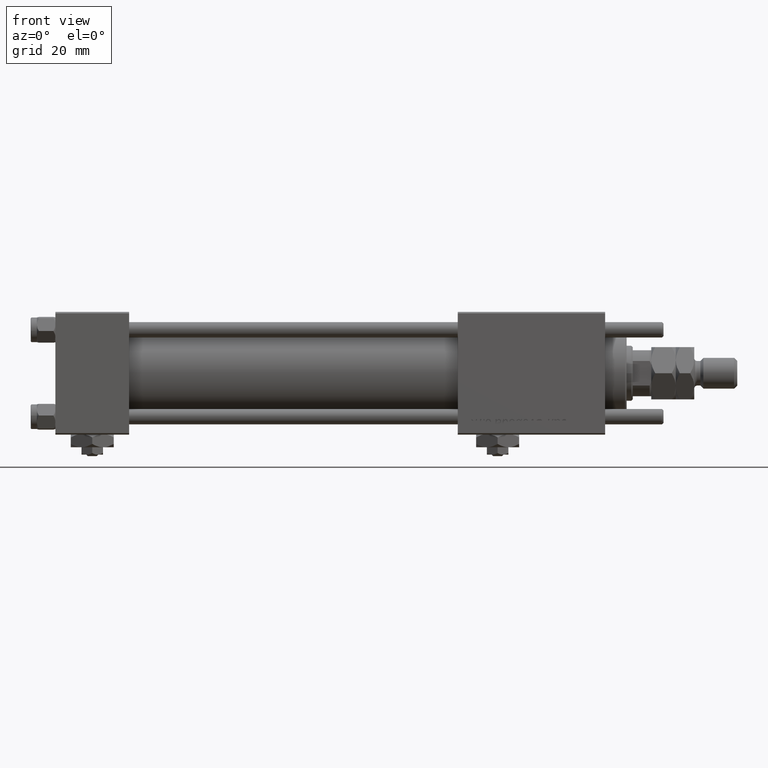
[diagram: clean part render]
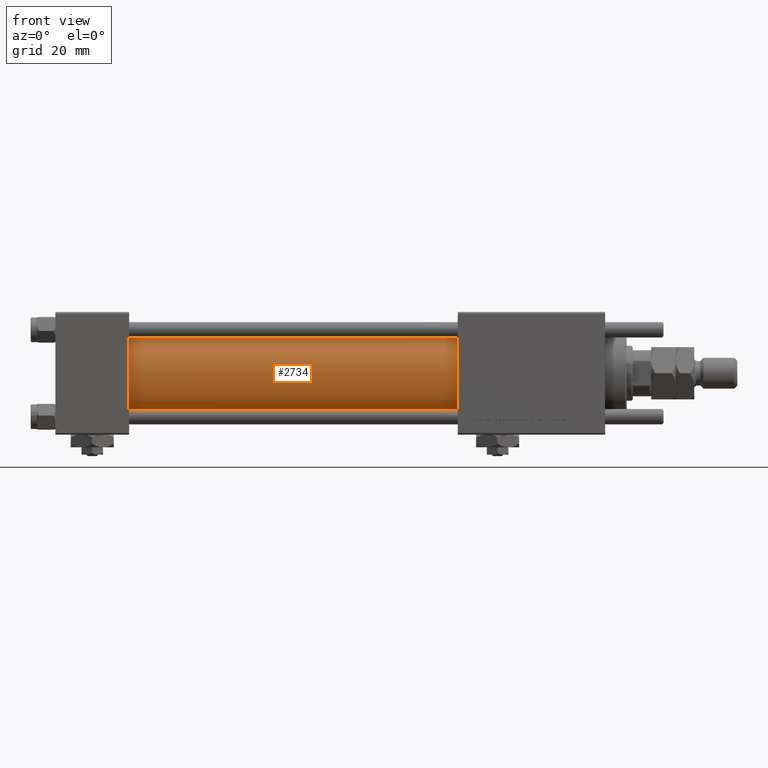
[diagram: same view with one face highlighted and labeled with its STEP entity id]
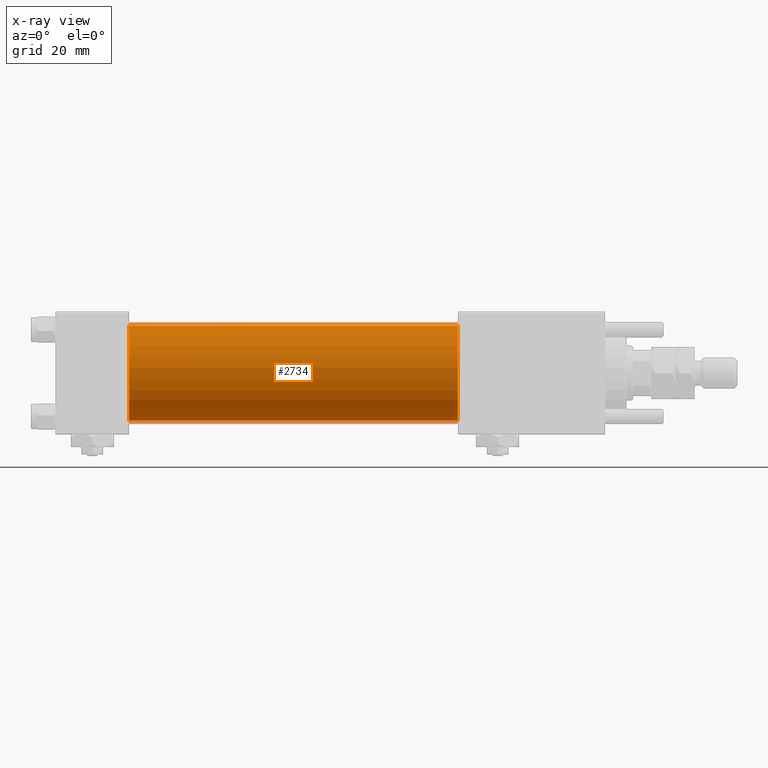
[diagram: x-ray of the same camera — body ghosted, the highlighted face saturated]
A machine part, front view. The second image highlights one B-rep face of the part: STEP entity #2734.
The next image is the same camera in x-ray: the body ghosted, the highlighted face saturated — about 0% of this face is hidden behind the body in this view.
In plain terms, the highlighted cylindrical surface (partial cylindrical patch) has radius 15.5 mm, axis along (-1, -0, -0).
Its self-contained STEP definition (entity closure, byte-faithful):
#463 = DIRECTION ( 'NONE',  ( -1.000000000000000000, -0.000000000000000000, -0.000000000000000000 ) ) ;
#2734 = ADVANCED_FACE ( 'NONE', ( #24729 ), #30221, .T. ) ;
#7496 = ORIENTED_EDGE ( 'NONE', *, *, #36913, .T. ) ;
#8222 = DIRECTION ( 'NONE',  ( 0.000000000000000000, 0.000000000000000000, 1.000000000000000000 ) ) ;
#10136 = CARTESIAN_POINT ( 'NONE',  ( 131.0000000000000000, -2.602085213965210642E-15, 15.50000000000000000 ) ) ;
#13051 = LINE ( 'NONE', #58908, #21835 ) ;
#14577 = DIRECTION ( 'NONE',  ( 1.000000000000000000, 0.000000000000000000, 0.000000000000000000 ) ) ;
#15546 = EDGE_CURVE ( 'NONE', #56882, #48097, #23508, .T. ) ;
#17324 = DIRECTION ( 'NONE',  ( 1.000000000000000000, 0.000000000000000000, 0.000000000000000000 ) ) ;
#18546 = DIRECTION ( 'NONE',  ( 0.000000000000000000, 0.000000000000000000, -1.000000000000000000 ) ) ;
#21835 = VECTOR ( 'NONE', #31075, 1000.000000000000000 ) ;
#22263 = ORIENTED_EDGE ( 'NONE', *, *, #15546, .F. ) ;
#23508 = CIRCLE ( 'NONE', #57714, 15.50000000000000000 ) ;
#23520 = ORIENTED_EDGE ( 'NONE', *, *, #41848, .T. ) ;
#23662 = LINE ( 'NONE', #46919, #36854 ) ;
#24290 = VERTEX_POINT ( 'NONE', #51105 ) ;
#24729 = FACE_OUTER_BOUND ( 'NONE', #47474, .T. ) ;
#25629 = CARTESIAN_POINT ( 'NONE',  ( 131.0000000000000000, -2.602085213965210642E-15, 0.000000000000000000 ) ) ;
#28654 = CARTESIAN_POINT ( 'NONE',  ( 131.0000000000000000, -7.038826752868131828E-16, -15.50000000000000000 ) ) ;
#30221 = CYLINDRICAL_SURFACE ( 'NONE', #39685, 15.50000000000000000 ) ;
#30828 = EDGE_CURVE ( 'NONE', #48097, #24290, #13051, .T. ) ;
#31075 = DIRECTION ( 'NONE',  ( -1.000000000000000000, -0.000000000000000000, -0.000000000000000000 ) ) ;
#32918 = CARTESIAN_POINT ( 'NONE',  ( 131.0000000000000000, -2.602085213965210642E-15, 0.000000000000000000 ) ) ;
#33779 = AXIS2_PLACEMENT_3D ( 'NONE', #45755, #17324, #59197 ) ;
#34608 = VERTEX_POINT ( 'NONE', #45821 ) ;
#34872 = ORIENTED_EDGE ( 'NONE', *, *, #30828, .F. ) ;
#36854 = VECTOR ( 'NONE', #463, 1000.000000000000000 ) ;
#36913 = EDGE_CURVE ( 'NONE', #34608, #24290, #59148, .T. ) ;
#39685 = AXIS2_PLACEMENT_3D ( 'NONE', #25629, #44306, #8222 ) ;
#41848 = EDGE_CURVE ( 'NONE', #56882, #34608, #23662, .T. ) ;
#44306 = DIRECTION ( 'NONE',  ( -1.000000000000000000, -0.000000000000000000, -0.000000000000000000 ) ) ;
#45755 = CARTESIAN_POINT ( 'NONE',  ( 23.99999999999999289, -2.602085213965210642E-15, 0.000000000000000000 ) ) ;
#45821 = CARTESIAN_POINT ( 'NONE',  ( 23.99999999999999289, -2.602085213965210642E-15, 15.50000000000000000 ) ) ;
#46919 = CARTESIAN_POINT ( 'NONE',  ( 131.0000000000000000, -2.602085213965210642E-15, 15.50000000000000000 ) ) ;
#47474 = EDGE_LOOP ( 'NONE', ( #34872, #22263, #23520, #7496 ) ) ;
#48097 = VERTEX_POINT ( 'NONE', #28654 ) ;
#51105 = CARTESIAN_POINT ( 'NONE',  ( 23.99999999999999289, -7.038826752868131828E-16, -15.50000000000000000 ) ) ;
#56882 = VERTEX_POINT ( 'NONE', #10136 ) ;
#57714 = AXIS2_PLACEMENT_3D ( 'NONE', #32918, #14577, #18546 ) ;
#58908 = CARTESIAN_POINT ( 'NONE',  ( 131.0000000000000000, -7.038826752868131828E-16, -15.50000000000000000 ) ) ;
#59148 = CIRCLE ( 'NONE', #33779, 15.50000000000000000 ) ;
#59197 = DIRECTION ( 'NONE',  ( 0.000000000000000000, 0.000000000000000000, 1.000000000000000000 ) ) ;